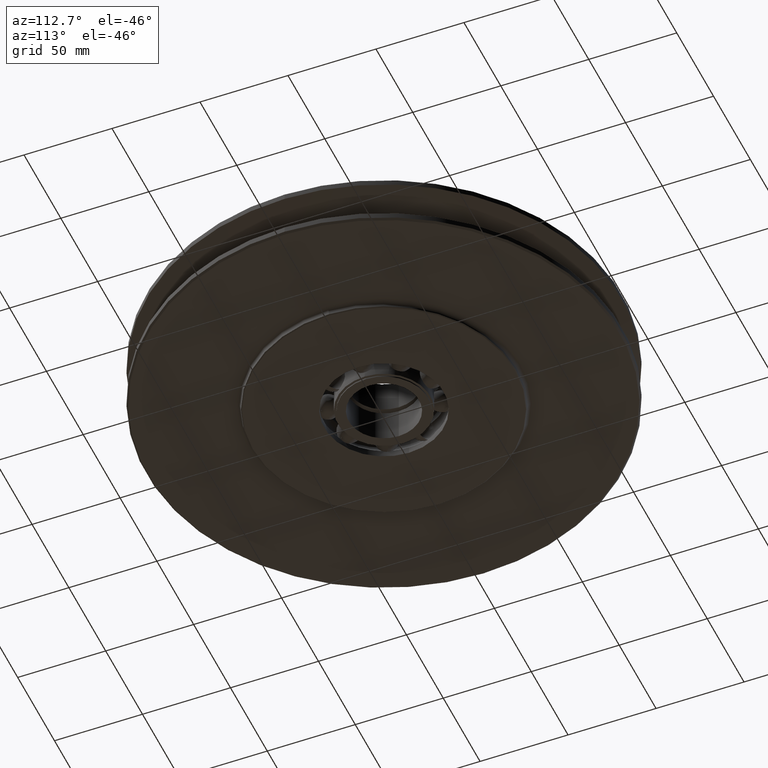
[diagram: clean part render]
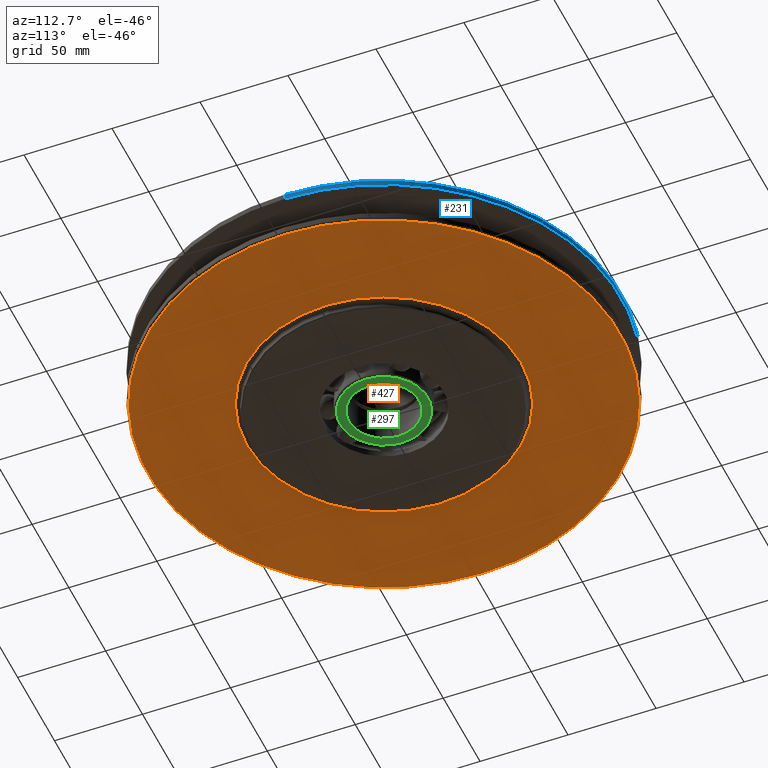
[diagram: same view with three faces highlighted in distinct colors, each labeled with its STEP entity id]
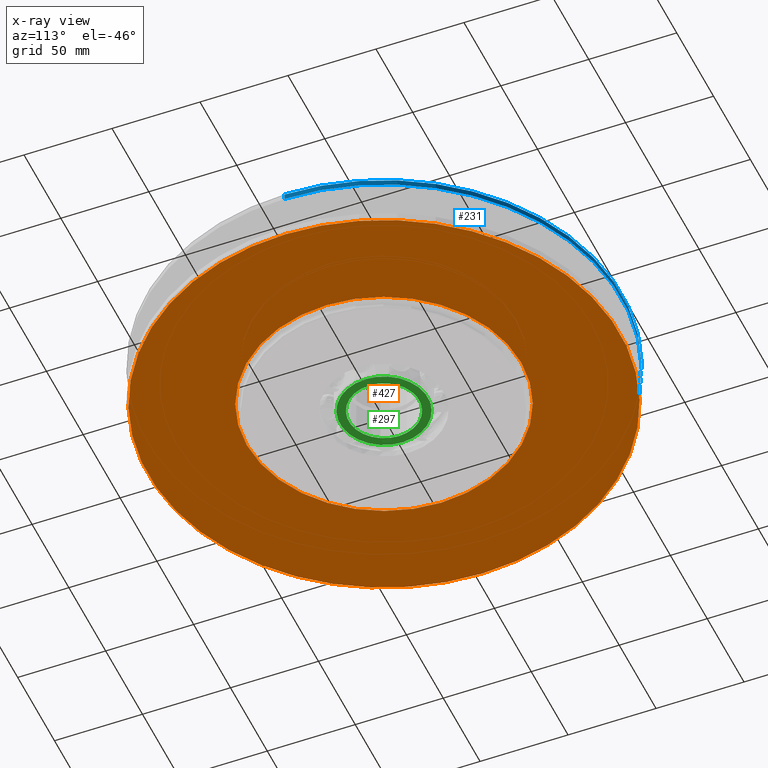
[diagram: x-ray of the same camera — body ghosted, the three highlighted faces saturated]
A machine part, auxiliary view with three faces highlighted in distinct colors.
The next image is the same camera in x-ray (body ghosted, the three faces saturated) — at least one of them is partly hidden behind the body in this view.
Their STEP definitions:

[orange] entity #427 — the highlighted planar face has unit normal (-0, 0, -1).
#427=ADVANCED_FACE('',(#880,#881),#882,.T.);
#880=FACE_OUTER_BOUND('',#1330,.T.);
#881=FACE_BOUND('',#1331,.T.);
#882=PLANE('',#1332);
#1330=EDGE_LOOP('',(#2767,#2768));
#1331=EDGE_LOOP('',(#2769,#2770));
#1332=AXIS2_PLACEMENT_3D('',#2771,#2772,#2773);
#2767=ORIENTED_EDGE('',*,*,#2940,.F.);
#2768=ORIENTED_EDGE('',*,*,#3401,.F.);
#2769=ORIENTED_EDGE('',*,*,#3399,.T.);
#2770=ORIENTED_EDGE('',*,*,#2946,.T.);
#2771=CARTESIAN_POINT('',(106.0,0.0,-15.0));
#2772=DIRECTION('',(-0.0,0.0,-1.0));
#2773=DIRECTION('',(-1.0,-0.0,0.0));
#2940=EDGE_CURVE('',#3622,#3624,#3625,.T.);
#2946=EDGE_CURVE('',#3629,#3633,#3635,.T.);
#3399=EDGE_CURVE('',#3633,#3629,#4304,.T.);
#3401=EDGE_CURVE('',#3624,#3622,#4306,.T.);
#3622=VERTEX_POINT('',#6045);
#3624=VERTEX_POINT('',#6048);
#3625=CIRCLE('',#6049,134.0);
#3629=VERTEX_POINT('',#6054);
#3633=VERTEX_POINT('',#6058);
#3635=CIRCLE('',#6060,78.0);
#4304=CIRCLE('',#10419,78.0);
#4306=CIRCLE('',#10421,134.0);
#6045=CARTESIAN_POINT('',(134.0,0.0,-15.0));
#6048=CARTESIAN_POINT('',(-134.0,1.64102671085745E-014,-15.0));
#6049=AXIS2_PLACEMENT_3D('',#10602,#10603,#10604);
#6054=CARTESIAN_POINT('',(-78.0,9.55224503334935E-015,-15.0));
#6058=CARTESIAN_POINT('',(78.0,0.0,-15.0));
#6060=AXIS2_PLACEMENT_3D('',#10615,#10616,#10617);
#10419=AXIS2_PLACEMENT_3D('',#11104,#11105,#11106);
#10421=AXIS2_PLACEMENT_3D('',#11107,#11108,#11109);
#10602=CARTESIAN_POINT('',(0.0,0.0,-15.0));
#10603=DIRECTION('',(0.0,0.0,1.0));
#10604=DIRECTION('',(1.0,0.0,0.0));
#10615=CARTESIAN_POINT('',(0.0,0.0,-15.0));
#10616=DIRECTION('',(0.0,0.0,1.0));
#10617=DIRECTION('',(1.0,0.0,0.0));
#11104=CARTESIAN_POINT('',(0.0,0.0,-15.0));
#11105=DIRECTION('',(0.0,0.0,1.0));
#11106=DIRECTION('',(1.0,0.0,0.0));
#11107=CARTESIAN_POINT('',(0.0,0.0,-15.0));
#11108=DIRECTION('',(0.0,0.0,1.0));
#11109=DIRECTION('',(1.0,0.0,0.0));

[blue] entity #231 — the highlighted cylindrical surface (partial cylindrical patch) has radius 135 mm, axis along (0, 0, 1).
#231=ADVANCED_FACE('',(#559),#560,.T.);
#559=FACE_OUTER_BOUND('',#1009,.T.);
#560=CYLINDRICAL_SURFACE('',#1010,135.0);
#1009=EDGE_LOOP('',(#1623,#1624,#1625,#1626));
#1010=AXIS2_PLACEMENT_3D('',#1627,#1628,#1629);
#1623=ORIENTED_EDGE('',*,*,#2976,.F.);
#1624=ORIENTED_EDGE('',*,*,#2924,.T.);
#1625=ORIENTED_EDGE('',*,*,#2977,.F.);
#1626=ORIENTED_EDGE('',*,*,#2972,.F.);
#1627=CARTESIAN_POINT('',(0.0,0.0,12.395042));
#1628=DIRECTION('',(0.0,0.0,1.0));
#1629=DIRECTION('',(1.0,0.0,0.0));
#2924=EDGE_CURVE('',#3597,#3599,#3601,.T.);
#2972=EDGE_CURVE('',#3672,#3675,#3676,.T.);
#2976=EDGE_CURVE('',#3597,#3672,#3681,.T.);
#2977=EDGE_CURVE('',#3675,#3599,#3682,.T.);
#3597=VERTEX_POINT('',#6014);
#3599=VERTEX_POINT('',#6017);
#3601=CIRCLE('',#6020,135.0);
#3672=VERTEX_POINT('',#6105);
#3675=VERTEX_POINT('',#6109);
#3676=CIRCLE('',#6110,135.0);
#3681=LINE('',#6116,#6117);
#3682=LINE('',#6118,#6119);
#6014=CARTESIAN_POINT('',(135.0,0.0,10.790084));
#6017=CARTESIAN_POINT('',(-135.0,1.65327317884893E-014,10.790084));
#6020=AXIS2_PLACEMENT_3D('',#10576,#10577,#10578);
#6105=CARTESIAN_POINT('',(135.0,0.0,14.0));
#6109=CARTESIAN_POINT('',(-135.0,1.65327317884893E-014,14.0));
#6110=AXIS2_PLACEMENT_3D('',#10657,#10658,#10659);
#6116=CARTESIAN_POINT('',(135.0,-1.65327317884893E-014,12.395042));
#6117=VECTOR('',#10664,1.0);
#6118=CARTESIAN_POINT('',(-135.0,1.65327317884893E-014,12.395042));
#6119=VECTOR('',#10665,1.0);
#10576=CARTESIAN_POINT('',(0.0,0.0,10.790084));
#10577=DIRECTION('',(0.0,0.0,1.0));
#10578=DIRECTION('',(1.0,0.0,0.0));
#10657=CARTESIAN_POINT('',(0.0,0.0,14.0));
#10658=DIRECTION('',(0.0,0.0,1.0));
#10659=DIRECTION('',(1.0,0.0,0.0));
#10664=DIRECTION('',(0.0,0.0,1.0));
#10665=DIRECTION('',(-0.0,-0.0,-1.0));

[green] entity #297 — the highlighted planar face has unit normal (0, 0, -1).
#297=ADVANCED_FACE('',(#666,#667),#668,.T.);
#666=FACE_BOUND('',#1116,.T.);
#667=FACE_OUTER_BOUND('',#1117,.T.);
#668=PLANE('',#1118);
#1116=EDGE_LOOP('',(#2057,#2058));
#1117=EDGE_LOOP('',(#2059,#2060));
#1118=AXIS2_PLACEMENT_3D('',#2061,#2062,#2063);
#2057=ORIENTED_EDGE('',*,*,#3243,.T.);
#2058=ORIENTED_EDGE('',*,*,#3226,.T.);
#2059=ORIENTED_EDGE('',*,*,#3241,.T.);
#2060=ORIENTED_EDGE('',*,*,#3236,.T.);
#2061=CARTESIAN_POINT('',(0.0,0.0,-20.25));
#2062=DIRECTION('',(0.0,0.0,-1.0));
#2063=DIRECTION('',(-1.0,0.0,0.0));
#3226=EDGE_CURVE('',#4101,#4098,#4102,.T.);
#3236=EDGE_CURVE('',#4119,#4116,#4120,.T.);
#3241=EDGE_CURVE('',#4116,#4119,#4126,.T.);
#3243=EDGE_CURVE('',#4098,#4101,#4128,.T.);
#4098=VERTEX_POINT('',#8851);
#4101=VERTEX_POINT('',#8855);
#4102=CIRCLE('',#8856,20.0);
#4116=VERTEX_POINT('',#8873);
#4119=VERTEX_POINT('',#8877);
#4120=CIRCLE('',#8878,25.0);
#4126=CIRCLE('',#8885,25.0);
#4128=CIRCLE('',#8887,20.0);
#8851=CARTESIAN_POINT('',(20.0,0.0,-20.25));
#8855=CARTESIAN_POINT('',(-20.0,-2.44929359829471E-015,-20.25));
#8856=AXIS2_PLACEMENT_3D('',#10973,#10974,#10975);
#8873=CARTESIAN_POINT('',(25.0,0.0,-20.25));
#8877=CARTESIAN_POINT('',(-25.0,3.06161699786838E-015,-20.25));
#8878=AXIS2_PLACEMENT_3D('',#10989,#10990,#10991);
#8885=AXIS2_PLACEMENT_3D('',#10999,#11000,#11001);
#8887=AXIS2_PLACEMENT_3D('',#11002,#11003,#11004);
#10973=CARTESIAN_POINT('',(0.0,0.0,-20.25));
#10974=DIRECTION('',(0.0,-0.0,1.0));
#10975=DIRECTION('',(1.0,0.0,0.0));
#10989=CARTESIAN_POINT('',(0.0,0.0,-20.25));
#10990=DIRECTION('',(0.0,0.0,-1.0));
#10991=DIRECTION('',(1.0,0.0,0.0));
#10999=CARTESIAN_POINT('',(0.0,0.0,-20.25));
#11000=DIRECTION('',(0.0,0.0,-1.0));
#11001=DIRECTION('',(1.0,0.0,0.0));
#11002=CARTESIAN_POINT('',(0.0,0.0,-20.25));
#11003=DIRECTION('',(0.0,-0.0,1.0));
#11004=DIRECTION('',(1.0,0.0,0.0));